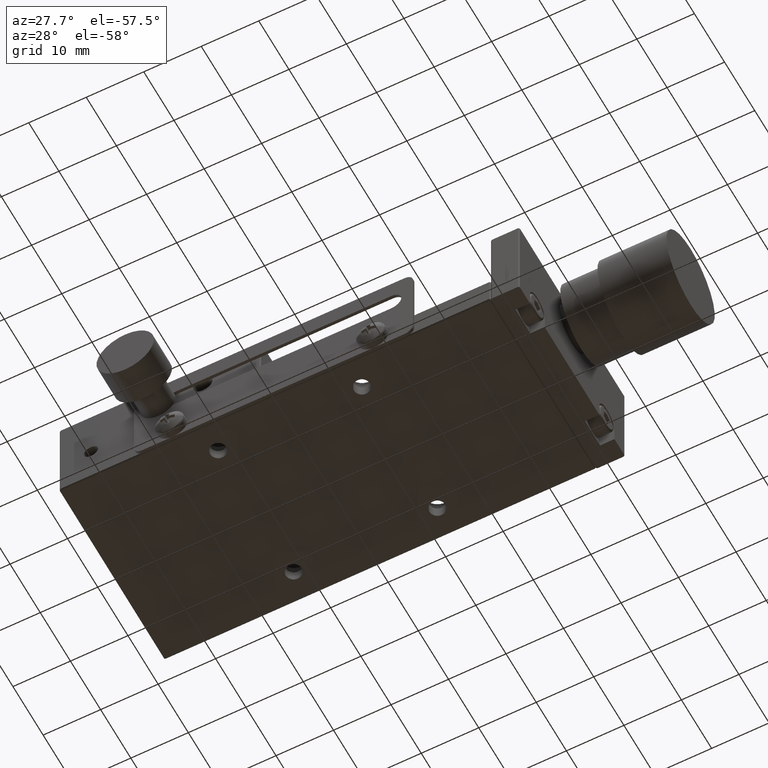
[diagram: clean part render]
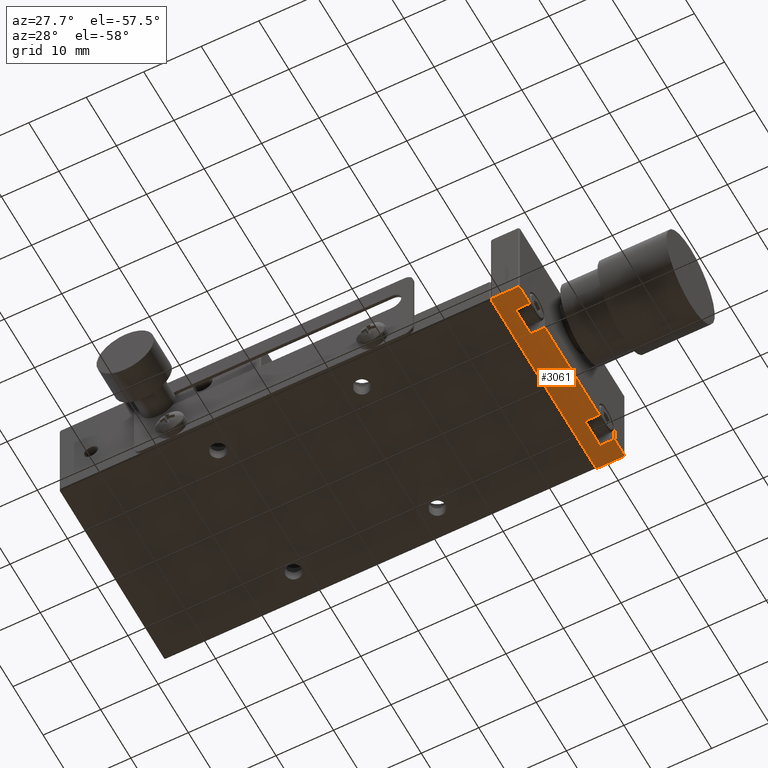
[diagram: same view with one face highlighted and labeled with its STEP entity id]
A machine part, auxiliary view. The second image highlights one B-rep face of the part: STEP entity #3061.
In plain terms, the highlighted planar face has unit normal (0, 0, 1).
Its self-contained STEP definition (entity closure, byte-faithful):
#106 = EDGE_CURVE ( 'NONE', #173, #2395, #8221, .T. ) ;
#173 = VERTEX_POINT ( 'NONE', #11072 ) ;
#200 = ORIENTED_EDGE ( 'NONE', *, *, #10681, .F. ) ;
#356 = EDGE_CURVE ( 'NONE', #8499, #451, #6169, .T. ) ;
#451 = VERTEX_POINT ( 'NONE', #3214 ) ;
#491 = CARTESIAN_POINT ( 'NONE',  ( 40.00000000000000000, -14.00000000000000400, 0.0000000000000000000 ) ) ;
#527 = CARTESIAN_POINT ( 'NONE',  ( 37.50000000000000000, -17.29999999750000200, 0.0000000000000000000 ) ) ;
#693 = VERTEX_POINT ( 'NONE', #6688 ) ;
#997 = ORIENTED_EDGE ( 'NONE', *, *, #9338, .T. ) ;
#1314 = EDGE_CURVE ( 'NONE', #8113, #4632, #4497, .T. ) ;
#1338 = ORIENTED_EDGE ( 'NONE', *, *, #356, .F. ) ;
#1340 = VERTEX_POINT ( 'NONE', #4002 ) ;
#1622 = VECTOR ( 'NONE', #2142, 1000.000000000000000 ) ;
#1650 = CARTESIAN_POINT ( 'NONE',  ( 40.00000000000000000, 17.50000000000000000, 0.0000000000000000000 ) ) ;
#1790 = EDGE_CURVE ( 'NONE', #693, #8236, #9101, .T. ) ;
#1883 = LINE ( 'NONE', #5591, #8515 ) ;
#1998 = ORIENTED_EDGE ( 'NONE', *, *, #8198, .F. ) ;
#2099 = DIRECTION ( 'NONE',  ( -0.0000000000000000000, 1.000000000000000000, -0.0000000000000000000 ) ) ;
#2141 = ORIENTED_EDGE ( 'NONE', *, *, #10776, .T. ) ;
#2142 = DIRECTION ( 'NONE',  ( -0.0000000000000000000, 1.000000000000000000, -0.0000000000000000000 ) ) ;
#2265 = EDGE_CURVE ( 'NONE', #10528, #4830, #1883, .T. ) ;
#2308 = CARTESIAN_POINT ( 'NONE',  ( 37.60000000000000100, -17.39999999999999900, 0.0000000000000000000 ) ) ;
#2321 = CARTESIAN_POINT ( 'NONE',  ( 42.50000000000000000, 8.999999998333335000, 0.0000000000000000000 ) ) ;
#2395 = VERTEX_POINT ( 'NONE', #6958 ) ;
#2434 = EDGE_LOOP ( 'NONE', ( #10183, #10663, #10451, #2534, #3740, #5380, #2141, #1338, #997, #6983, #8466, #200, #3237, #1998, #5820, #7948 ) ) ;
#2453 = CARTESIAN_POINT ( 'NONE',  ( 37.70000000000000300, 17.50000000000000000, -2.168404344971008900E-016 ) ) ;
#2456 = VECTOR ( 'NONE', #10631, 1000.000000000000000 ) ;
#2479 = FACE_OUTER_BOUND ( 'NONE', #2434, .T. ) ;
#2507 = DIRECTION ( 'NONE',  ( -1.000000000000000000, 0.0000000000000000000, 0.0000000000000000000 ) ) ;
#2508 = CARTESIAN_POINT ( 'NONE',  ( 42.39999999999999900, -17.39999999999999900, 0.0000000000000000000 ) ) ;
#2534 = ORIENTED_EDGE ( 'NONE', *, *, #9103, .F. ) ;
#2629 = CARTESIAN_POINT ( 'NONE',  ( 42.50000000000000000, 0.0000000000000000000, 0.0000000000000000000 ) ) ;
#2637 = CARTESIAN_POINT ( 'NONE',  ( 40.00000000000000000, 0.0000000000000000000, 0.0000000000000000000 ) ) ;
#3051 = CARTESIAN_POINT ( 'NONE',  ( 41.25000000000000000, 9.000000000000001800, 0.0000000000000000000 ) ) ;
#3061 = ADVANCED_FACE ( 'NONE', ( #2479 ), #10992, .F. ) ;
#3214 = CARTESIAN_POINT ( 'NONE',  ( 40.00000000000000000, 14.00000000000000000, 0.0000000000000000000 ) ) ;
#3237 = ORIENTED_EDGE ( 'NONE', *, *, #4791, .F. ) ;
#3243 = CARTESIAN_POINT ( 'NONE',  ( 40.00000000000000000, 11.50000000000000000, 0.0000000000000000000 ) ) ;
#3298 = VECTOR ( 'NONE', #5987, 1000.000000000000000 ) ;
#3345 = DIRECTION ( 'NONE',  ( -0.7071067811865536800, -0.7071067811865414700, 0.0000000000000000000 ) ) ;
#3409 = DIRECTION ( 'NONE',  ( 1.000000000000000000, -0.0000000000000000000, -0.0000000000000000000 ) ) ;
#3479 = CARTESIAN_POINT ( 'NONE',  ( 42.50000000000000000, 0.0000000000000000000, 0.0000000000000000000 ) ) ;
#3512 = DIRECTION ( 'NONE',  ( -0.0000000000000000000, 1.000000000000000000, -0.0000000000000000000 ) ) ;
#3605 = VECTOR ( 'NONE', #2099, 1000.000000000000000 ) ;
#3696 = DIRECTION ( 'NONE',  ( 1.000000000000000000, -0.0000000000000000000, -0.0000000000000000000 ) ) ;
#3700 = DIRECTION ( 'NONE',  ( -0.0000000000000000000, 1.000000000000000000, -0.0000000000000000000 ) ) ;
#3734 = CARTESIAN_POINT ( 'NONE',  ( 42.50000000000000000, -8.999999997400006900, 0.0000000000000000000 ) ) ;
#3740 = ORIENTED_EDGE ( 'NONE', *, *, #8326, .T. ) ;
#4002 = CARTESIAN_POINT ( 'NONE',  ( 37.70000000000000300, -17.50000000000000000, 0.0000000000000000000 ) ) ;
#4116 = VECTOR ( 'NONE', #7493, 1000.000000000000000 ) ;
#4180 = VECTOR ( 'NONE', #9112, 1000.000000000000000 ) ;
#4393 = DIRECTION ( 'NONE',  ( -0.7071067811865536800, -0.7071067811865414700, 0.0000000000000000000 ) ) ;
#4441 = CARTESIAN_POINT ( 'NONE',  ( 41.25000000000000000, 14.00000000000000000, 0.0000000000000000000 ) ) ;
#4470 = DIRECTION ( 'NONE',  ( -1.000000000000000000, 0.0000000000000000000, 0.0000000000000000000 ) ) ;
#4492 = VECTOR ( 'NONE', #5569, 1000.000000000000000 ) ;
#4497 = LINE ( 'NONE', #2508, #8836 ) ;
#4567 = CARTESIAN_POINT ( 'NONE',  ( 40.00000000000000000, -8.999999995000006700, 0.0000000000000000000 ) ) ;
#4632 = VERTEX_POINT ( 'NONE', #5388 ) ;
#4666 = CARTESIAN_POINT ( 'NONE',  ( 42.29999999999999700, 17.50000000000000000, 0.0000000000000000000 ) ) ;
#4791 = EDGE_CURVE ( 'NONE', #9186, #8610, #10274, .T. ) ;
#4830 = VERTEX_POINT ( 'NONE', #9157 ) ;
#4922 = VECTOR ( 'NONE', #3512, 1000.000000000000000 ) ;
#5255 = CARTESIAN_POINT ( 'NONE',  ( 42.50000000000000000, 17.50000000000000000, 0.0000000000000000000 ) ) ;
#5380 = ORIENTED_EDGE ( 'NONE', *, *, #106, .F. ) ;
#5388 = CARTESIAN_POINT ( 'NONE',  ( 42.29999999999999700, -17.50000000000000000, 0.0000000000000000000 ) ) ;
#5392 = LINE ( 'NONE', #8012, #9731 ) ;
#5539 = VECTOR ( 'NONE', #3700, 1000.000000000000000 ) ;
#5569 = DIRECTION ( 'NONE',  ( -1.000000000000000000, 0.0000000000000000000, 0.0000000000000000000 ) ) ;
#5591 = CARTESIAN_POINT ( 'NONE',  ( 37.60000000000000100, 17.39999999999999900, 0.0000000000000000000 ) ) ;
#5820 = ORIENTED_EDGE ( 'NONE', *, *, #1314, .T. ) ;
#5841 = DIRECTION ( 'NONE',  ( -1.000000000000000000, 0.0000000000000000000, 0.0000000000000000000 ) ) ;
#5987 = DIRECTION ( 'NONE',  ( -0.0000000000000000000, 1.000000000000000000, -0.0000000000000000000 ) ) ;
#6082 = CARTESIAN_POINT ( 'NONE',  ( 37.50000000000000000, 0.0000000000000000000, 0.0000000000000000000 ) ) ;
#6108 = DIRECTION ( 'NONE',  ( 0.0000000000000000000, -1.000000000000000000, 0.0000000000000000000 ) ) ;
#6169 = LINE ( 'NONE', #3243, #1622 ) ;
#6341 = CARTESIAN_POINT ( 'NONE',  ( 42.39999999999999900, 17.39999999999999900, 0.0000000000000000000 ) ) ;
#6688 = CARTESIAN_POINT ( 'NONE',  ( 40.00000000000000000, -8.999999996666673500, 0.0000000000000000000 ) ) ;
#6750 = LINE ( 'NONE', #1650, #11034 ) ;
#6918 = VECTOR ( 'NONE', #6108, 1000.000000000000000 ) ;
#6919 = VERTEX_POINT ( 'NONE', #527 ) ;
#6958 = CARTESIAN_POINT ( 'NONE',  ( 42.50000000000000000, 17.29999999666666700, 0.0000000000000000000 ) ) ;
#6983 = ORIENTED_EDGE ( 'NONE', *, *, #7778, .F. ) ;
#7015 = CARTESIAN_POINT ( 'NONE',  ( 42.50000000000000000, -17.29999999666666700, 0.0000000000000000000 ) ) ;
#7044 = LINE ( 'NONE', #6341, #2456 ) ;
#7049 = EDGE_CURVE ( 'NONE', #6919, #1340, #8737, .T. ) ;
#7131 = CARTESIAN_POINT ( 'NONE',  ( 42.50000000000000000, 0.0000000000000000000, 0.0000000000000000000 ) ) ;
#7493 = DIRECTION ( 'NONE',  ( 0.7071067811865536800, -0.7071067811865414700, -0.0000000000000000000 ) ) ;
#7778 = EDGE_CURVE ( 'NONE', #8236, #8921, #10139, .T. ) ;
#7875 = LINE ( 'NONE', #7131, #5539 ) ;
#7948 = ORIENTED_EDGE ( 'NONE', *, *, #9221, .F. ) ;
#8012 = CARTESIAN_POINT ( 'NONE',  ( 40.00000000000000000, -17.50000000000000000, 0.0000000000000000000 ) ) ;
#8078 = VECTOR ( 'NONE', #4470, 1000.000000000000000 ) ;
#8089 = EDGE_CURVE ( 'NONE', #4830, #6919, #9233, .T. ) ;
#8113 = VERTEX_POINT ( 'NONE', #7015 ) ;
#8198 = EDGE_CURVE ( 'NONE', #8113, #9186, #7875, .T. ) ;
#8221 = LINE ( 'NONE', #3479, #3605 ) ;
#8236 = VERTEX_POINT ( 'NONE', #3734 ) ;
#8326 = EDGE_CURVE ( 'NONE', #8347, #2395, #7044, .T. ) ;
#8347 = VERTEX_POINT ( 'NONE', #4666 ) ;
#8466 = ORIENTED_EDGE ( 'NONE', *, *, #1790, .F. ) ;
#8499 = VERTEX_POINT ( 'NONE', #9187 ) ;
#8515 = VECTOR ( 'NONE', #4393, 1000.000000000000000 ) ;
#8579 = CARTESIAN_POINT ( 'NONE',  ( 40.00000000000000000, -14.00000000000000400, 0.0000000000000000000 ) ) ;
#8610 = VERTEX_POINT ( 'NONE', #8579 ) ;
#8695 = DIRECTION ( 'NONE',  ( 0.0000000000000000000, 0.0000000000000000000, 1.000000000000000000 ) ) ;
#8737 = LINE ( 'NONE', #2308, #4116 ) ;
#8836 = VECTOR ( 'NONE', #3345, 1000.000000000000000 ) ;
#8921 = VERTEX_POINT ( 'NONE', #2321 ) ;
#9101 = LINE ( 'NONE', #4567, #10510 ) ;
#9103 = EDGE_CURVE ( 'NONE', #8347, #10528, #6750, .T. ) ;
#9112 = DIRECTION ( 'NONE',  ( 1.000000000000000000, 0.0000000000000000000, 0.0000000000000000000 ) ) ;
#9157 = CARTESIAN_POINT ( 'NONE',  ( 37.50000000000000000, 17.29999999750000200, 0.0000000000000000000 ) ) ;
#9186 = VERTEX_POINT ( 'NONE', #10410 ) ;
#9187 = CARTESIAN_POINT ( 'NONE',  ( 40.00000000000000000, 9.000000000000001800, 0.0000000000000000000 ) ) ;
#9221 = EDGE_CURVE ( 'NONE', #1340, #4632, #5392, .T. ) ;
#9233 = LINE ( 'NONE', #6082, #6918 ) ;
#9338 = EDGE_CURVE ( 'NONE', #8499, #8921, #10744, .T. ) ;
#9525 = LINE ( 'NONE', #2637, #4922 ) ;
#9731 = VECTOR ( 'NONE', #3696, 1000.000000000000000 ) ;
#10048 = AXIS2_PLACEMENT_3D ( 'NONE', #5255, #8695, #5841 ) ;
#10139 = LINE ( 'NONE', #2629, #3298 ) ;
#10183 = ORIENTED_EDGE ( 'NONE', *, *, #7049, .F. ) ;
#10274 = LINE ( 'NONE', #491, #4492 ) ;
#10315 = LINE ( 'NONE', #4441, #8078 ) ;
#10410 = CARTESIAN_POINT ( 'NONE',  ( 42.50000000000000000, -13.99999999473333600, 0.0000000000000000000 ) ) ;
#10451 = ORIENTED_EDGE ( 'NONE', *, *, #2265, .F. ) ;
#10510 = VECTOR ( 'NONE', #3409, 1000.000000000000000 ) ;
#10528 = VERTEX_POINT ( 'NONE', #2453 ) ;
#10631 = DIRECTION ( 'NONE',  ( 0.7071067811865536800, -0.7071067811865414700, -0.0000000000000000000 ) ) ;
#10663 = ORIENTED_EDGE ( 'NONE', *, *, #8089, .F. ) ;
#10681 = EDGE_CURVE ( 'NONE', #8610, #693, #9525, .T. ) ;
#10744 = LINE ( 'NONE', #3051, #4180 ) ;
#10776 = EDGE_CURVE ( 'NONE', #173, #451, #10315, .T. ) ;
#10992 = PLANE ( 'NONE',  #10048 ) ;
#11034 = VECTOR ( 'NONE', #2507, 1000.000000000000000 ) ;
#11072 = CARTESIAN_POINT ( 'NONE',  ( 42.50000000000000000, 14.00000000000000000, 0.0000000000000000000 ) ) ;